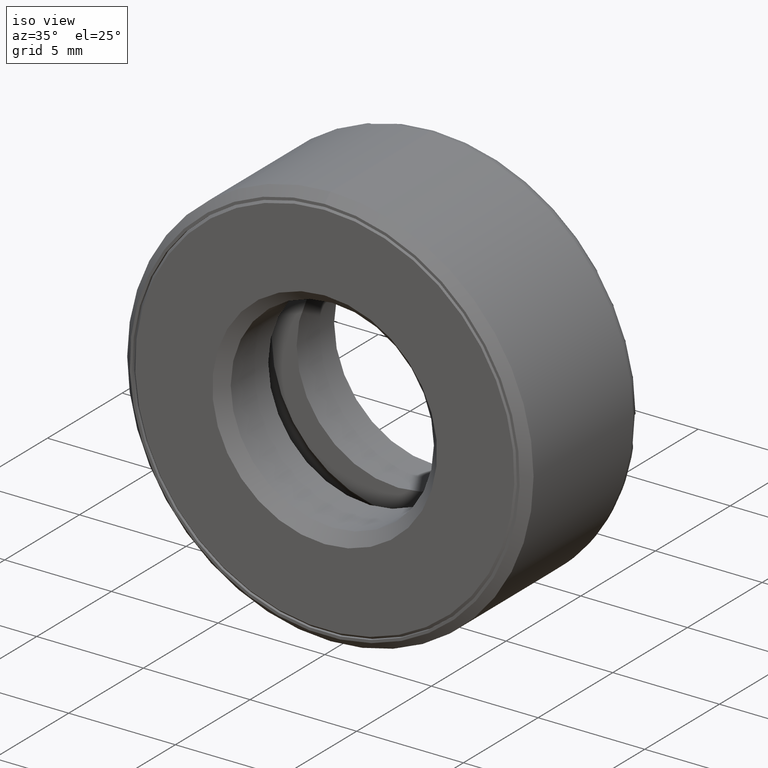
[diagram: clean part render]
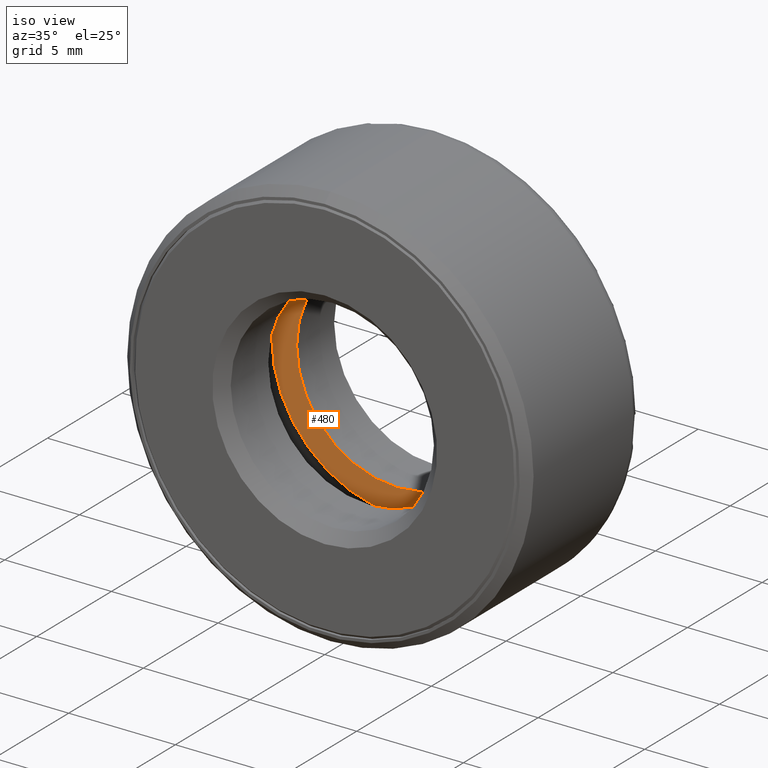
[diagram: same view with one face highlighted and labeled with its STEP entity id]
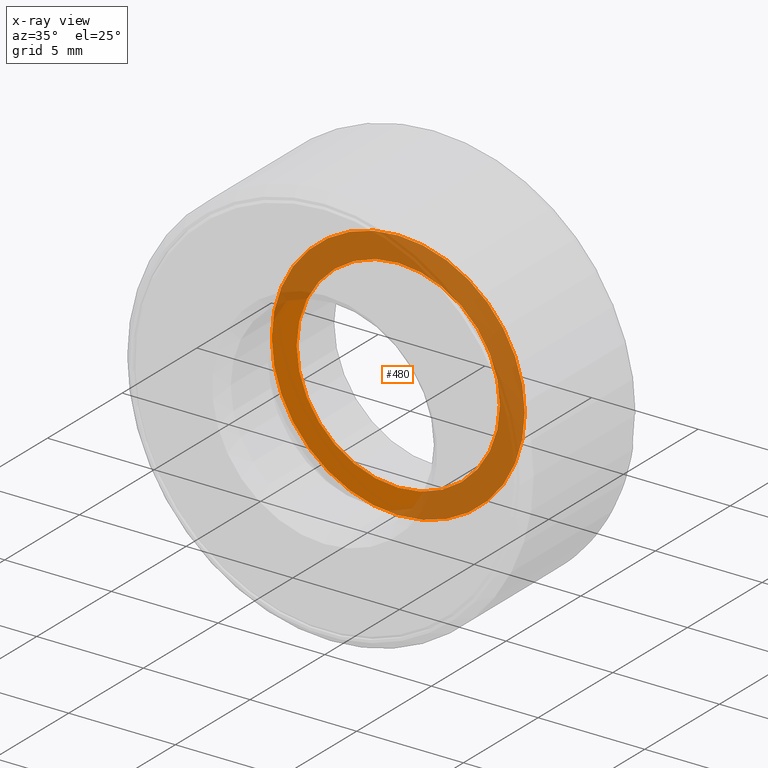
[diagram: x-ray of the same camera — body ghosted, the highlighted face saturated]
A machine part, iso view. The second image highlights one B-rep face of the part: STEP entity #480.
The next image is the same camera in x-ray: the body ghosted, the highlighted face saturated — about 68% of this face is hidden behind the body in this view.
In plain terms, the highlighted planar face has unit normal (0, -1, 0).
Its self-contained STEP definition (entity closure, byte-faithful):
#2 = FACE_OUTER_BOUND ( 'NONE', #391, .T. ) ;
#6 = CARTESIAN_POINT ( 'NONE',  ( 0.0000000000000000000, 0.1937500000000000100, 0.2334999999999999900 ) ) ;
#30 = AXIS2_PLACEMENT_3D ( 'NONE', #186, #471, #43 ) ;
#31 = ORIENTED_EDGE ( 'NONE', *, *, #412, .T. ) ;
#43 = DIRECTION ( 'NONE',  ( 0.0000000000000000000, -0.0000000000000000000, -1.000000000000000000 ) ) ;
#75 = CIRCLE ( 'NONE', #348, 0.2334999999999999900 ) ;
#98 = DIRECTION ( 'NONE',  ( -0.0000000000000000000, 1.000000000000000000, -0.0000000000000000000 ) ) ;
#186 = CARTESIAN_POINT ( 'NONE',  ( 1.438303121664270200E-016, 0.1937500000000000100, 0.0000000000000000000 ) ) ;
#189 = CIRCLE ( 'NONE', #596, 0.1875000000000000600 ) ;
#192 = DIRECTION ( 'NONE',  ( 0.0000000000000000000, 0.0000000000000000000, 1.000000000000000000 ) ) ;
#231 = DIRECTION ( 'NONE',  ( 0.0000000000000000000, 0.0000000000000000000, 1.000000000000000000 ) ) ;
#266 = VERTEX_POINT ( 'NONE', #345 ) ;
#342 = ORIENTED_EDGE ( 'NONE', *, *, #464, .F. ) ;
#345 = CARTESIAN_POINT ( 'NONE',  ( 0.0000000000000000000, 0.1937499999999999800, 0.1875000000000000600 ) ) ;
#348 = AXIS2_PLACEMENT_3D ( 'NONE', #598, #98, #192 ) ;
#391 = EDGE_LOOP ( 'NONE', ( #342 ) ) ;
#392 = FACE_BOUND ( 'NONE', #587, .T. ) ;
#398 = CARTESIAN_POINT ( 'NONE',  ( 0.0000000000000000000, 0.1937499999999999800, 0.0000000000000000000 ) ) ;
#412 = EDGE_CURVE ( 'NONE', #266, #266, #189, .T. ) ;
#464 = EDGE_CURVE ( 'NONE', #562, #562, #75, .T. ) ;
#471 = DIRECTION ( 'NONE',  ( 0.0000000000000000000, -1.000000000000000000, 0.0000000000000000000 ) ) ;
#480 = ADVANCED_FACE ( 'NONE', ( #392, #2 ), #509, .T. ) ;
#509 = PLANE ( 'NONE',  #30 ) ;
#562 = VERTEX_POINT ( 'NONE', #6 ) ;
#587 = EDGE_LOOP ( 'NONE', ( #31 ) ) ;
#596 = AXIS2_PLACEMENT_3D ( 'NONE', #398, #603, #231 ) ;
#598 = CARTESIAN_POINT ( 'NONE',  ( 0.0000000000000000000, 0.1937500000000000100, 0.0000000000000000000 ) ) ;
#603 = DIRECTION ( 'NONE',  ( -0.0000000000000000000, 1.000000000000000000, -0.0000000000000000000 ) ) ;